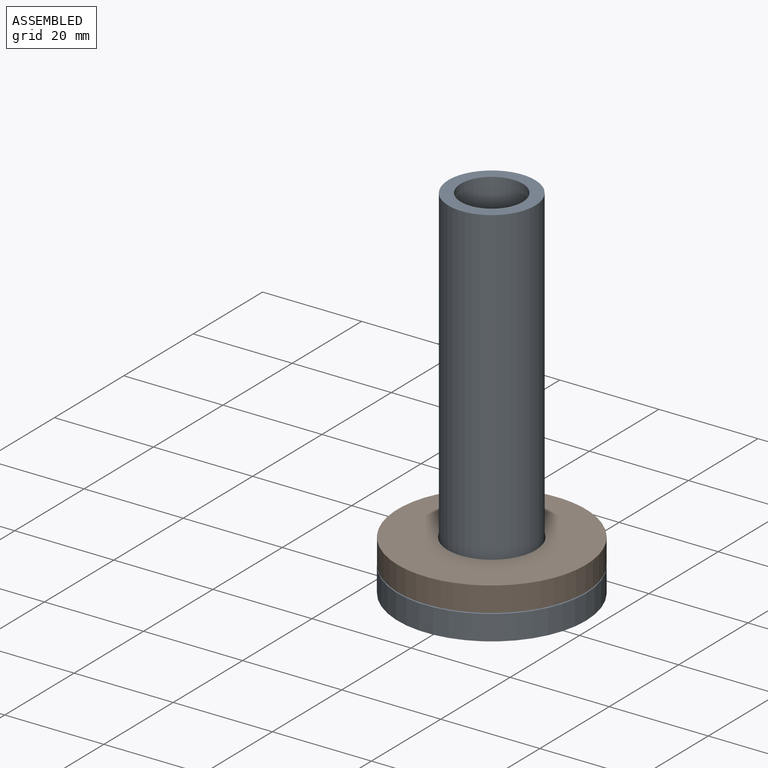
[diagram: assembled view]
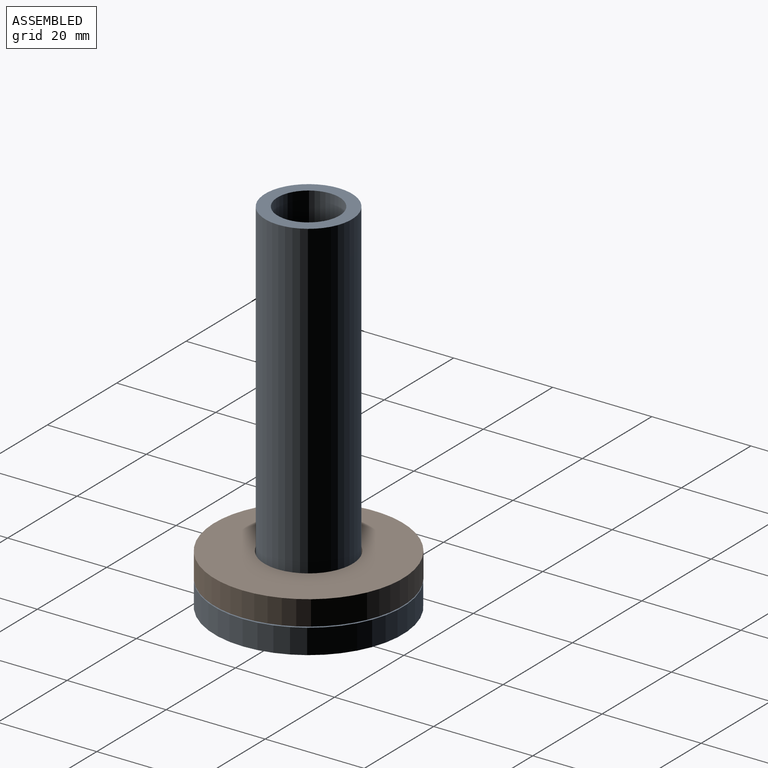
[diagram: assembled view, second angle]
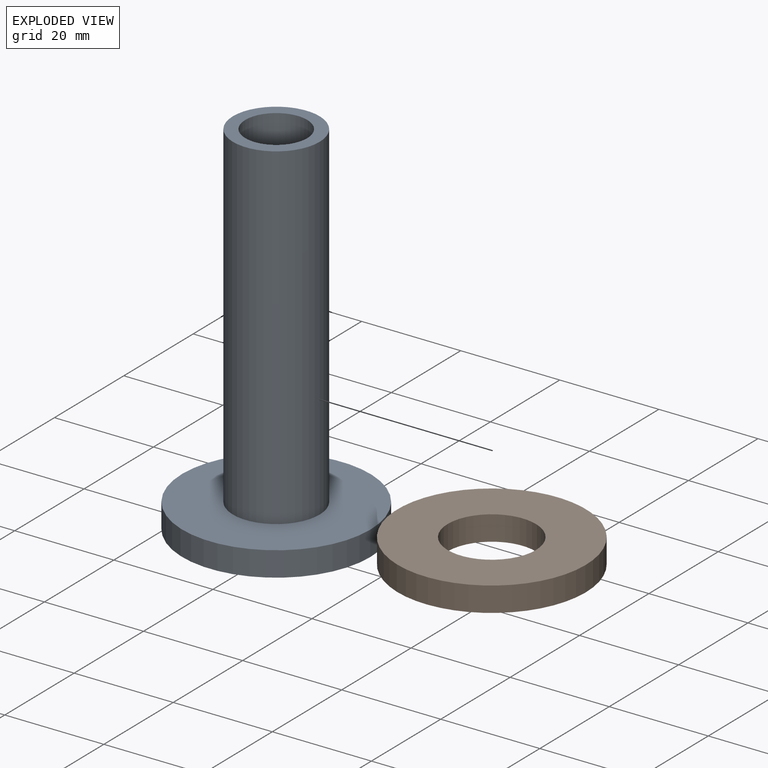
[diagram: exploded view]
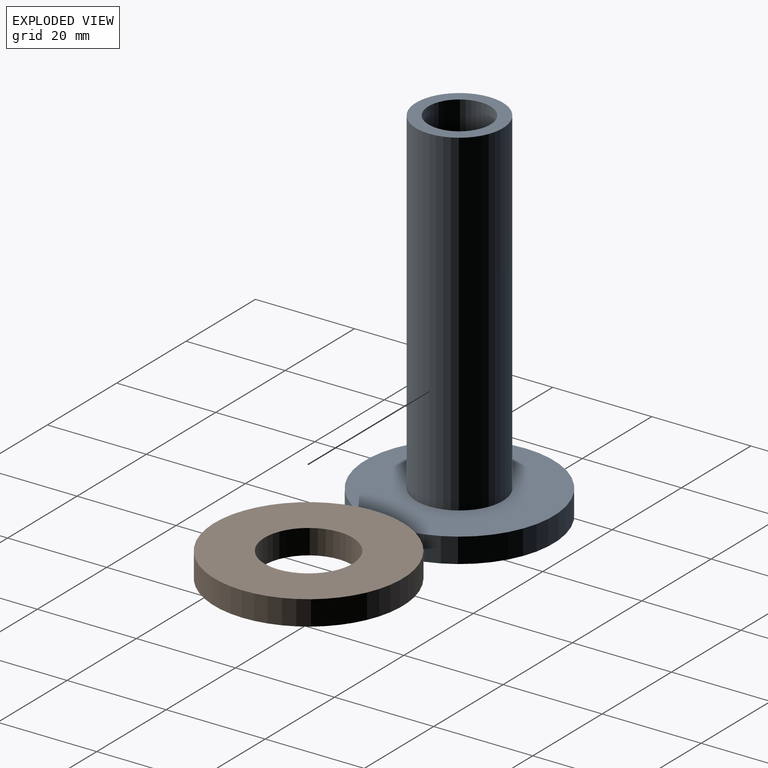
[diagram: exploded view, second angle]
ASSEMBLY  parts=2 mates=2
PART A: 6 faces, bbox 38x38x73 mm
  f0: cylinder r=6.25mm len=73mm, axis (0,0,-1), area 2866.7mm2, adj f2,f3
  f1: cylinder r=8.75mm len=68mm, axis (0,0,-1), area 3738.5mm2, adj f2,f5
  f2: plane 17.5x17.5mm, normal (0,0,1), area 117.8mm2, adj f0,f1
  f3: plane 38x38mm, normal (0,0,-1), area 1011.4mm2, adj f0,f4
  f4: cylinder r=19mm len=38mm, axis (0,0,-1), area 596.9mm2, adj f3,f5
  f5: plane 38x38mm, normal (0,0,1), area 893.6mm2, adj f1,f4
PART B: 4 faces, bbox 38x38x5 mm
  f0: cylinder r=8.9mm len=17.8mm, axis (0,0,-1), area 279.6mm2, adj f2,f3
  f1: cylinder r=19mm len=38mm, axis (0,0,-1), area 596.9mm2, adj f2,f3
  f2: plane 38x38mm, normal (0,0,1), area 885.3mm2, adj f0,f1
  f3: plane 38x38mm, normal (0,0,-1), area 885.3mm2, adj f0,f1
PLACE A t=(-17.69,-35.97,0)mm fixed
PLACE B rot(axis=(0,0,1),102.3deg) t=(-57.39,-100.26,5.2)mm
MATE cylindrical B.f0 <-> A.f0  axis (0,0,1) through (-49.42,-51.83,10.2)mm
MATE slider A.f0 <-> A.f0  axis (0,0,-1) through (-49.42,-51.83,39)mm
